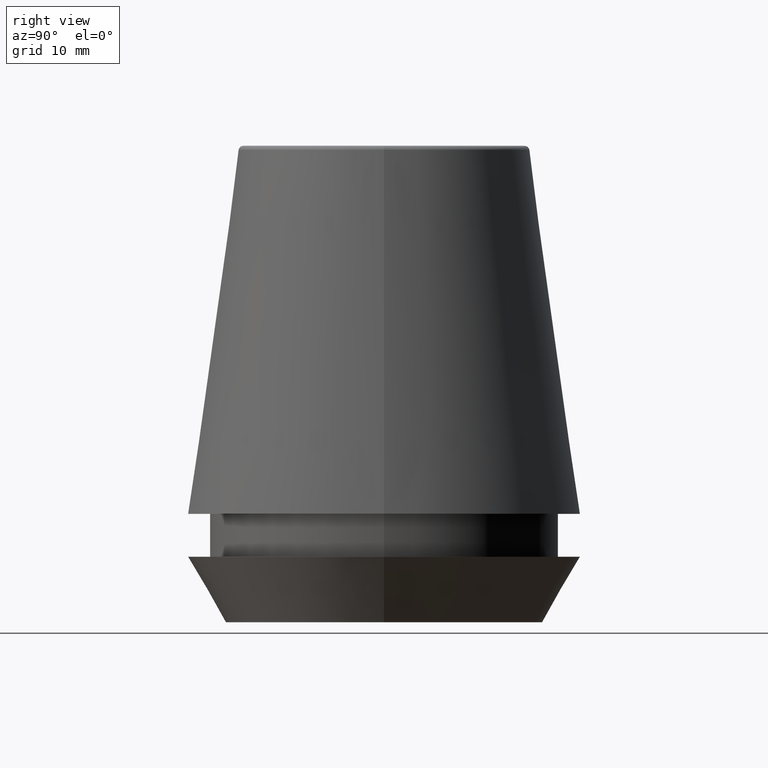
[diagram: clean part render]
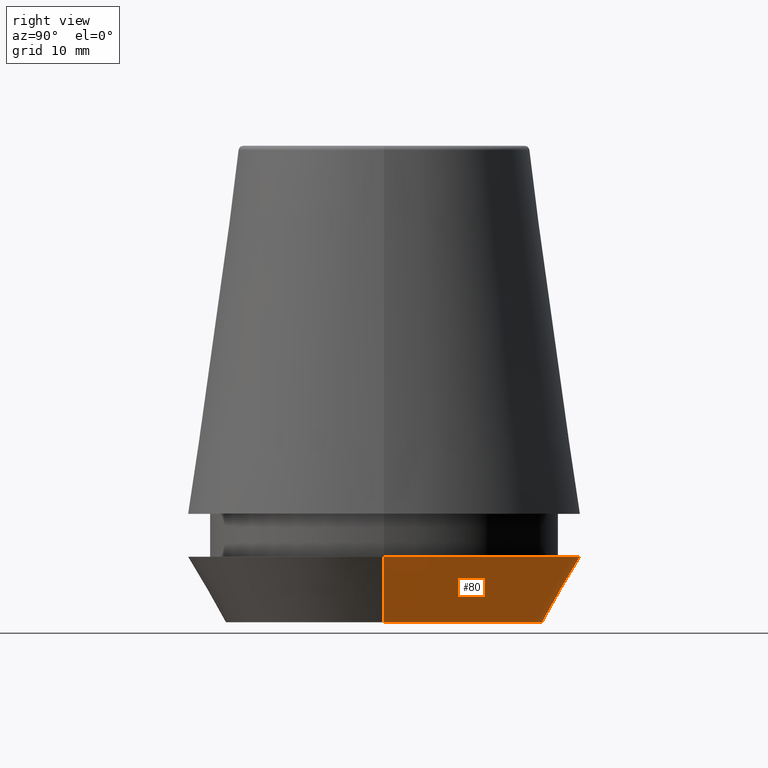
[diagram: same view with one face highlighted and labeled with its STEP entity id]
A machine part, right view. The second image highlights one B-rep face of the part: STEP entity #80.
In plain terms, the highlighted conical surface has half-angle 30 deg.
Its self-contained STEP definition (entity closure, byte-faithful):
#11 = LINE ( 'NONE', #112, #330 ) ;
#12 = AXIS2_PLACEMENT_3D ( 'NONE', #378, #170, #366 ) ;
#20 = CONICAL_SURFACE ( 'NONE', #12, 13.32457351945710200, 0.5235987755982927100 ) ;
#55 = DIRECTION ( 'NONE',  ( -0.0000000000000000000, -0.0000000000000000000, 1.000000000000000000 ) ) ;
#61 = ORIENTED_EDGE ( 'NONE', *, *, #338, .F. ) ;
#65 = AXIS2_PLACEMENT_3D ( 'NONE', #298, #148, #284 ) ;
#80 = ADVANCED_FACE ( 'NONE', ( #380 ), #20, .T. ) ;
#93 = ORIENTED_EDGE ( 'NONE', *, *, #246, .T. ) ;
#97 = EDGE_CURVE ( 'NONE', #161, #277, #250, .T. ) ;
#109 = CIRCLE ( 'NONE', #65, 13.32457351945710200 ) ;
#112 = CARTESIAN_POINT ( 'NONE',  ( -13.32457351945710200, 1.631789631060672300E-015, 0.0000000000000000000 ) ) ;
#130 = CARTESIAN_POINT ( 'NONE',  ( 0.0000000000000000000, 0.0000000000000000000, 5.500000000000005300 ) ) ;
#136 = CARTESIAN_POINT ( 'NONE',  ( 13.32457351945710200, 0.0000000000000000000, 0.0000000000000000000 ) ) ;
#146 = VECTOR ( 'NONE', #282, 999.9999999999998900 ) ;
#148 = DIRECTION ( 'NONE',  ( -0.0000000000000000000, -0.0000000000000000000, 1.000000000000000000 ) ) ;
#161 = VERTEX_POINT ( 'NONE', #136 ) ;
#164 = EDGE_LOOP ( 'NONE', ( #93, #228, #61, #376 ) ) ;
#170 = DIRECTION ( 'NONE',  ( -0.0000000000000000000, -0.0000000000000000000, 1.000000000000000000 ) ) ;
#180 = CIRCLE ( 'NONE', #195, 16.50000000000000000 ) ;
#188 = CARTESIAN_POINT ( 'NONE',  ( -13.32457351945710200, 1.826228424826902600E-015, 0.0000000000000000000 ) ) ;
#195 = AXIS2_PLACEMENT_3D ( 'NONE', #130, #55, #271 ) ;
#228 = ORIENTED_EDGE ( 'NONE', *, *, #261, .T. ) ;
#246 = EDGE_CURVE ( 'NONE', #161, #267, #109, .T. ) ;
#250 = LINE ( 'NONE', #292, #146 ) ;
#261 = EDGE_CURVE ( 'NONE', #267, #387, #11, .T. ) ;
#267 = VERTEX_POINT ( 'NONE', #188 ) ;
#271 = DIRECTION ( 'NONE',  ( 1.000000000000000000, 0.0000000000000000000, 0.0000000000000000000 ) ) ;
#277 = VERTEX_POINT ( 'NONE', #333 ) ;
#282 = DIRECTION ( 'NONE',  ( 0.4999999999999947300, 0.0000000000000000000, 0.8660254037844418200 ) ) ;
#284 = DIRECTION ( 'NONE',  ( 1.000000000000000000, 0.0000000000000000000, 0.0000000000000000000 ) ) ;
#292 = CARTESIAN_POINT ( 'NONE',  ( 13.32457351945710200, 0.0000000000000000000, 0.0000000000000000000 ) ) ;
#298 = CARTESIAN_POINT ( 'NONE',  ( 0.0000000000000000000, 0.0000000000000000000, 0.0000000000000000000 ) ) ;
#314 = DIRECTION ( 'NONE',  ( -0.4999999999999947300, 6.123233995736700700E-017, 0.8660254037844418200 ) ) ;
#330 = VECTOR ( 'NONE', #314, 999.9999999999998900 ) ;
#333 = CARTESIAN_POINT ( 'NONE',  ( 16.50000000000000000, 0.0000000000000000000, 5.500000000000005300 ) ) ;
#338 = EDGE_CURVE ( 'NONE', #277, #387, #180, .T. ) ;
#366 = DIRECTION ( 'NONE',  ( 1.000000000000000000, 0.0000000000000000000, 0.0000000000000000000 ) ) ;
#376 = ORIENTED_EDGE ( 'NONE', *, *, #97, .F. ) ;
#378 = CARTESIAN_POINT ( 'NONE',  ( 0.0000000000000000000, 0.0000000000000000000, 0.0000000000000000000 ) ) ;
#380 = FACE_OUTER_BOUND ( 'NONE', #164, .T. ) ;
#383 = CARTESIAN_POINT ( 'NONE',  ( -16.50000000000000000, 2.020667218593133100E-015, 5.500000000000005300 ) ) ;
#387 = VERTEX_POINT ( 'NONE', #383 ) ;